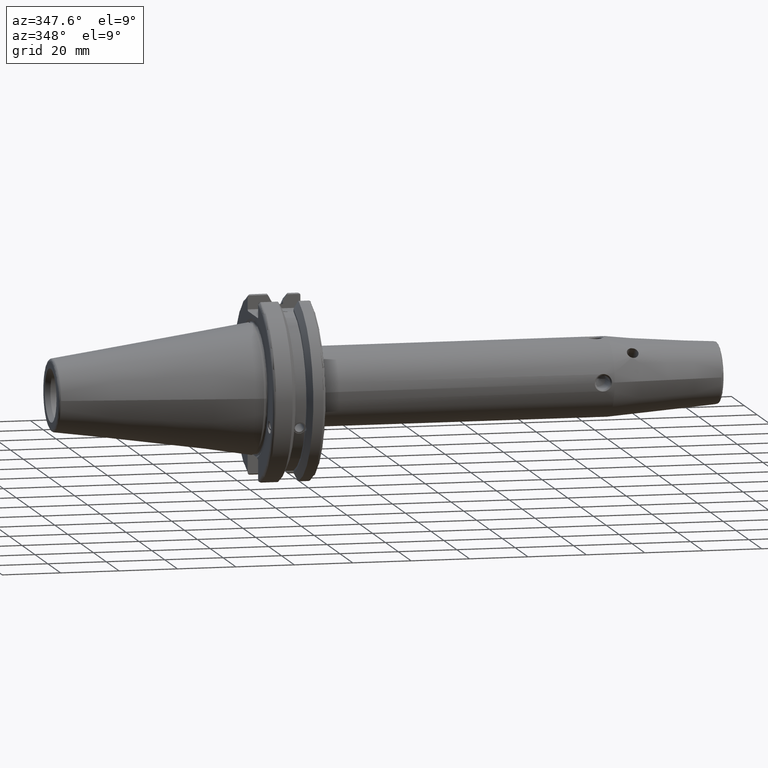
[diagram: clean part render]
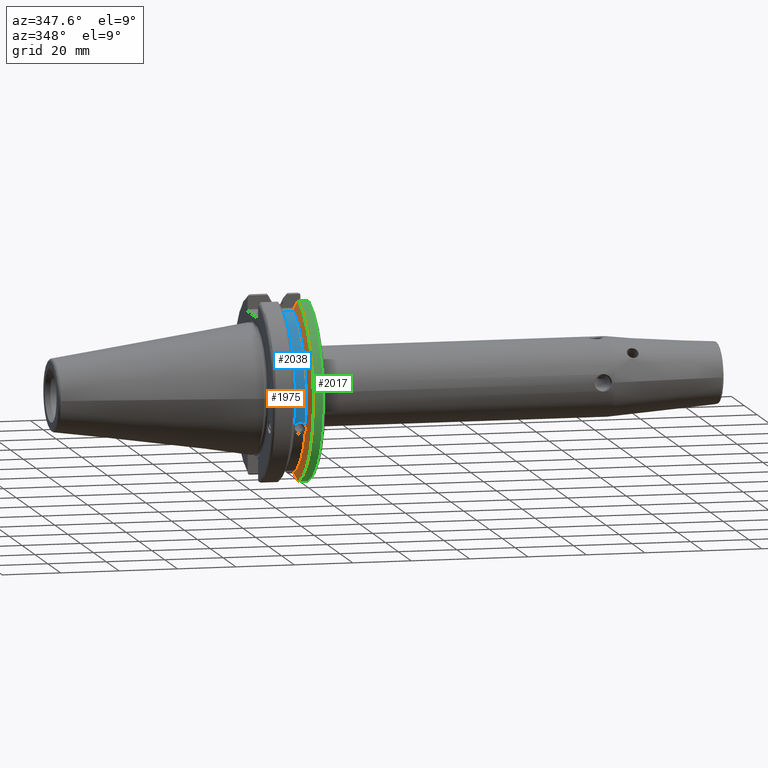
[diagram: same view with three faces highlighted in distinct colors, each labeled with its STEP entity id]
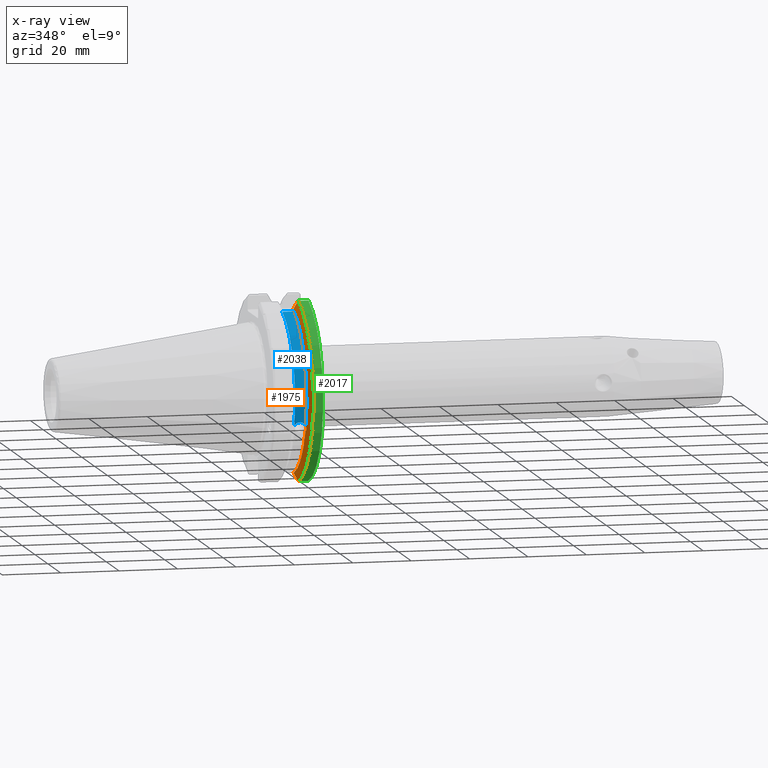
[diagram: x-ray of the same camera — body ghosted, the three highlighted faces saturated]
A machine part, auxiliary view with three faces highlighted in distinct colors.
The next image is the same camera in x-ray (body ghosted, the three faces saturated) — at least one of them is partly hidden behind the body in this view.
Their STEP definitions:

[orange] entity #1975 — the highlighted conical surface has half-angle 60 deg.
#14=(
BOUNDED_CURVE()
B_SPLINE_CURVE(2,(#4179,#4180,#4181),.UNSPECIFIED.,.F.,.F.)
B_SPLINE_CURVE_WITH_KNOTS((3,3),(0.,0.276549142796805),.UNSPECIFIED.)
CURVE()
GEOMETRIC_REPRESENTATION_ITEM()
RATIONAL_B_SPLINE_CURVE((1.,1.00095203904186,1.00031614445102))
REPRESENTATION_ITEM('')
);
#15=(
BOUNDED_CURVE()
B_SPLINE_CURVE(2,(#4183,#4184,#4185),.UNSPECIFIED.,.F.,.F.)
B_SPLINE_CURVE_WITH_KNOTS((3,3),(0.,0.0639048713676002),.UNSPECIFIED.)
CURVE()
GEOMETRIC_REPRESENTATION_ITEM()
RATIONAL_B_SPLINE_CURVE((1.,1.0002844421828,1.00047644010568))
REPRESENTATION_ITEM('')
);
#16=(
BOUNDED_CURVE()
B_SPLINE_CURVE(2,(#4189,#4190,#4191),.UNSPECIFIED.,.F.,.F.)
B_SPLINE_CURVE_WITH_KNOTS((3,3),(0.329353533631192,0.393258405001023),
 .UNSPECIFIED.)
CURVE()
GEOMETRIC_REPRESENTATION_ITEM()
RATIONAL_B_SPLINE_CURVE((1.00047644010581,1.00028444218288,1.))
REPRESENTATION_ITEM('')
);
#17=(
BOUNDED_CURVE()
B_SPLINE_CURVE(2,(#4193,#4194,#4195),.UNSPECIFIED.,.F.,.F.)
B_SPLINE_CURVE_WITH_KNOTS((3,3),(0.0550586467390284,0.331607789535849),
 .UNSPECIFIED.)
CURVE()
GEOMETRIC_REPRESENTATION_ITEM()
RATIONAL_B_SPLINE_CURVE((1.00031614445116,1.00095203904229,1.))
REPRESENTATION_ITEM('')
);
#140=CONICAL_SURFACE('',#2156,30.3546886482472,1.0471975511966);
#196=FACE_OUTER_BOUND('',#324,.T.);
#324=EDGE_LOOP('',(#1532,#1533,#1534,#1535,#1536,#1537,#1538,#1539,#1540));
#672=CIRCLE('',#2157,28.9593772964944);
#673=CIRCLE('',#2158,31.75);
#674=CIRCLE('',#2159,28.9593772964944);
#754=B_SPLINE_CURVE_WITH_KNOTS('',3,(#4086,#4087,#4088,#4089,#4090,#4091,
#4092,#4093),.UNSPECIFIED.,.F.,.F.,(4,2,2,4),(0.451995700189026,0.46454782854766,
0.504528771685166,0.544509714822671),.UNSPECIFIED.);
#758=B_SPLINE_CURVE_WITH_KNOTS('',3,(#4148,#4149,#4150,#4151,#4152,#4153,
#4154,#4155),.UNSPECIFIED.,.F.,.F.,(4,2,2,4),(0.544509714822671,0.584490657960176,
0.624471601097681,0.637023729456314),.UNSPECIFIED.);
#865=VERTEX_POINT('',#4083);
#866=VERTEX_POINT('',#4085);
#873=VERTEX_POINT('',#4146);
#879=VERTEX_POINT('',#4176);
#880=VERTEX_POINT('',#4178);
#881=VERTEX_POINT('',#4182);
#882=VERTEX_POINT('',#4186);
#883=VERTEX_POINT('',#4188);
#884=VERTEX_POINT('',#4192);
#1101=EDGE_CURVE('',#866,#865,#754,.T.);
#1109=EDGE_CURVE('',#865,#873,#758,.T.);
#1118=EDGE_CURVE('',#873,#879,#672,.T.);
#1119=EDGE_CURVE('',#879,#880,#14,.T.);
#1120=EDGE_CURVE('',#881,#880,#15,.T.);
#1121=EDGE_CURVE('',#882,#881,#673,.T.);
#1122=EDGE_CURVE('',#883,#882,#16,.T.);
#1123=EDGE_CURVE('',#883,#884,#17,.T.);
#1124=EDGE_CURVE('',#884,#866,#674,.T.);
#1532=ORIENTED_EDGE('',*,*,#1101,.T.);
#1533=ORIENTED_EDGE('',*,*,#1109,.T.);
#1534=ORIENTED_EDGE('',*,*,#1118,.T.);
#1535=ORIENTED_EDGE('',*,*,#1119,.T.);
#1536=ORIENTED_EDGE('',*,*,#1120,.F.);
#1537=ORIENTED_EDGE('',*,*,#1121,.F.);
#1538=ORIENTED_EDGE('',*,*,#1122,.F.);
#1539=ORIENTED_EDGE('',*,*,#1123,.T.);
#1540=ORIENTED_EDGE('',*,*,#1124,.T.);
#1975=ADVANCED_FACE('',(#196),#140,.T.);
#2156=AXIS2_PLACEMENT_3D('',#4175,#2517,#2518);
#2157=AXIS2_PLACEMENT_3D('',#4177,#2519,#2520);
#2158=AXIS2_PLACEMENT_3D('',#4187,#2521,#2522);
#2159=AXIS2_PLACEMENT_3D('',#4196,#2523,#2524);
#2517=DIRECTION('center_axis',(1.,0.,0.));
#2518=DIRECTION('ref_axis',(0.,-1.,-1.22464679914735E-16));
#2519=DIRECTION('center_axis',(1.,0.,0.));
#2520=DIRECTION('ref_axis',(0.,0.,-1.));
#2521=DIRECTION('center_axis',(1.,0.,0.));
#2522=DIRECTION('ref_axis',(0.,0.,-1.));
#2523=DIRECTION('center_axis',(1.,0.,0.));
#2524=DIRECTION('ref_axis',(0.,0.,-1.));
#4083=CARTESIAN_POINT('',(13.276,-27.51401829017,-10.0142836826777));
#4085=CARTESIAN_POINT('',(13.091,-27.4956274489925,-9.09043478536249));
#4086=CARTESIAN_POINT('Ctrl Pts',(13.091,-27.4956274489925,-9.09043478536248));
#4087=CARTESIAN_POINT('Ctrl Pts',(13.1051204071996,-27.5087667900418,-9.12860597076219));
#4088=CARTESIAN_POINT('Ctrl Pts',(13.1185929817857,-27.5206055003512,-9.16696618806878));
#4089=CARTESIAN_POINT('Ctrl Pts',(13.171981441159,-27.5642934663232,-9.32791534028655));
#4090=CARTESIAN_POINT('Ctrl Pts',(13.2101197084175,-27.5867382255984,-9.46717946402648));
#4091=CARTESIAN_POINT('Ctrl Pts',(13.2623106446058,-27.5847569104122,-9.74771639360671));
#4092=CARTESIAN_POINT('Ctrl Pts',(13.276,-27.559599249844,-9.8890510252165));
#4093=CARTESIAN_POINT('Ctrl Pts',(13.276,-27.51401829017,-10.0142836826777));
#4146=CARTESIAN_POINT('',(13.091,-26.9060914640649,-10.710171591907));
#4148=CARTESIAN_POINT('Ctrl Pts',(13.276,-27.51401829017,-10.0142836826777));
#4149=CARTESIAN_POINT('Ctrl Pts',(13.276,-27.4684373304961,-10.139516340139));
#4150=CARTESIAN_POINT('Ctrl Pts',(13.2623106446058,-27.3968610665578,-10.2639559818059));
#4151=CARTESIAN_POINT('Ctrl Pts',(13.2101197084175,-27.2180531796526,-10.4801333026531));
#4152=CARTESIAN_POINT('Ctrl Pts',(13.171981441159,-27.1113422433189,-10.5723885976054));
#4153=CARTESIAN_POINT('Ctrl Pts',(13.1185929817857,-26.9744191989197,-10.6676007180673));
#4154=CARTESIAN_POINT('Ctrl Pts',(13.1051204071996,-26.9406927482839,-10.6893765730703));
#4155=CARTESIAN_POINT('Ctrl Pts',(13.091,-26.9060914640649,-10.7101715919071));
#4175=CARTESIAN_POINT('Origin',(13.8965833845378,0.,0.));
#4176=CARTESIAN_POINT('',(13.091,-8.19,-27.7771386827498));
#4177=CARTESIAN_POINT('Origin',(13.091,0.,0.));
#4178=CARTESIAN_POINT('',(14.4234146964874,-8.19,-30.1755016258903));
#4179=CARTESIAN_POINT('Ctrl Pts',(13.091,-8.19,-27.7771386827498));
#4180=CARTESIAN_POINT('Ctrl Pts',(13.7296364384735,-8.19,-28.9303689539659));
#4181=CARTESIAN_POINT('Ctrl Pts',(14.4234146964874,-8.19,-30.1755016258903));
#4182=CARTESIAN_POINT('',(14.7021667690756,-8.67204822802685,-30.5427254764662));
#4183=CARTESIAN_POINT('Ctrl Pts',(14.7021667690756,-8.67204822802686,-30.5427254764662));
#4184=CARTESIAN_POINT('Ctrl Pts',(14.5611085187837,-8.42917748262647,-30.357706789263));
#4185=CARTESIAN_POINT('Ctrl Pts',(14.4234146964874,-8.19,-30.1755016258903));
#4186=CARTESIAN_POINT('',(14.7021667690756,-8.67204822802685,30.5427254764662));
#4187=CARTESIAN_POINT('Origin',(14.7021667690756,0.,0.));
#4188=CARTESIAN_POINT('',(14.4234146964874,-8.19,30.1755016258903));
#4189=CARTESIAN_POINT('Ctrl Pts',(14.4234146964874,-8.19,30.1755016258903));
#4190=CARTESIAN_POINT('Ctrl Pts',(14.5611085187884,-8.42917748263466,30.3577067892692));
#4191=CARTESIAN_POINT('Ctrl Pts',(14.7021667690756,-8.67204822802685,30.5427254764662));
#4192=CARTESIAN_POINT('',(13.091,-8.19,27.7771386827498));
#4193=CARTESIAN_POINT('Ctrl Pts',(14.4234146964874,-8.19,30.1755016258903));
#4194=CARTESIAN_POINT('Ctrl Pts',(13.7296364384736,-8.19,28.9303689539661));
#4195=CARTESIAN_POINT('Ctrl Pts',(13.091,-8.19,27.7771386827498));
#4196=CARTESIAN_POINT('Origin',(13.091,0.,0.));

[blue] entity #2038 — the highlighted cylindrical surface (partial cylindrical patch) has radius 28.15 mm, axis along (1, 0, 0).
#259=FACE_OUTER_BOUND('',#394,.T.);
#394=EDGE_LOOP('',(#1877,#1878,#1879,#1880));
#476=LINE('',#4499,#593);
#593=VECTOR('',#2654,10.);
#720=CIRCLE('',#2276,28.15);
#721=CIRCLE('',#2278,28.15);
#755=B_SPLINE_CURVE_WITH_KNOTS('',3,(#4097,#4098,#4099,#4100,#4101,#4102,
#4103,#4104,#4105,#4106,#4107,#4108,#4109,#4110),.UNSPECIFIED.,.F.,.F.,
(4,2,2,2,2,2,4),(0.401639126382403,0.474814416953736,0.553950208498303,
0.63308600004287,0.712221791587437,0.791357583132004,0.864532873703336),
 .UNSPECIFIED.);
#867=VERTEX_POINT('',#4094);
#868=VERTEX_POINT('',#4096);
#940=VERTEX_POINT('',#4496);
#941=VERTEX_POINT('',#4498);
#1103=EDGE_CURVE('',#868,#867,#755,.T.);
#1203=EDGE_CURVE('',#941,#940,#476,.T.);
#1281=EDGE_CURVE('',#940,#868,#720,.T.);
#1282=EDGE_CURVE('',#941,#867,#721,.T.);
#1877=ORIENTED_EDGE('',*,*,#1103,.T.);
#1878=ORIENTED_EDGE('',*,*,#1282,.F.);
#1879=ORIENTED_EDGE('',*,*,#1203,.T.);
#1880=ORIENTED_EDGE('',*,*,#1281,.T.);
#1928=CYLINDRICAL_SURFACE('',#2277,28.15);
#2038=ADVANCED_FACE('',(#259),#1928,.T.);
#2276=AXIS2_PLACEMENT_3D('',#4707,#2823,#2824);
#2277=AXIS2_PLACEMENT_3D('',#4708,#2825,#2826);
#2278=AXIS2_PLACEMENT_3D('',#4709,#2827,#2828);
#2654=DIRECTION('',(-1.,0.,0.));
#2823=DIRECTION('center_axis',(1.,0.,0.));
#2824=DIRECTION('ref_axis',(0.,0.,-1.));
#2825=DIRECTION('center_axis',(1.,0.,0.));
#2826=DIRECTION('ref_axis',(0.,-0.887654187951484,0.46051063246378));
#2827=DIRECTION('center_axis',(1.,0.,0.));
#2828=DIRECTION('ref_axis',(0.,0.,-1.));
#4094=CARTESIAN_POINT('',(13.091,-26.734714844398,-8.81348524641212));
#4096=CARTESIAN_POINT('',(9.261,-26.734714844398,-8.81348524641212));
#4097=CARTESIAN_POINT('Ctrl Pts',(9.261,-26.734714844398,-8.81348524641212));
#4098=CARTESIAN_POINT('Ctrl Pts',(9.36723057097183,-26.8086519721597,-8.58920529678291));
#4099=CARTESIAN_POINT('Ctrl Pts',(9.51872013770509,-26.8729987454904,-8.38416529997369));
#4100=CARTESIAN_POINT('Ctrl Pts',(9.87747062657411,-26.9778908791383,-8.04056861831091));
#4101=CARTESIAN_POINT('Ctrl Pts',(10.1135450112988,-27.0233016799732,-7.88512567185902));
#4102=CARTESIAN_POINT('Ctrl Pts',(10.6309125426388,-27.0826966800569,-7.6786444840004));
#4103=CARTESIAN_POINT('Ctrl Pts',(10.9122140281848,-27.0968804077294,-7.62768458768513));
#4104=CARTESIAN_POINT('Ctrl Pts',(11.4397859718152,-27.0968804077294,-7.62768458768513));
#4105=CARTESIAN_POINT('Ctrl Pts',(11.7210874573612,-27.0826966800569,-7.6786444840004));
#4106=CARTESIAN_POINT('Ctrl Pts',(12.2384549887012,-27.0233016799732,-7.88512567185903));
#4107=CARTESIAN_POINT('Ctrl Pts',(12.4745293734259,-26.9778908791383,-8.04056861831091));
#4108=CARTESIAN_POINT('Ctrl Pts',(12.8332798622949,-26.8729987454904,-8.3841652999737));
#4109=CARTESIAN_POINT('Ctrl Pts',(12.9847694290282,-26.8086519721597,-8.58920529678291));
#4110=CARTESIAN_POINT('Ctrl Pts',(13.091,-26.734714844398,-8.81348524641212));
#4496=CARTESIAN_POINT('',(9.261,-8.19,26.932255754021));
#4498=CARTESIAN_POINT('',(13.091,-8.19,26.932255754021));
#4499=CARTESIAN_POINT('',(11.176,-8.19,26.932255754021));
#4707=CARTESIAN_POINT('Origin',(9.261,0.,0.));
#4708=CARTESIAN_POINT('Origin',(11.176,0.,0.));
#4709=CARTESIAN_POINT('Origin',(13.091,0.,0.));

[green] entity #2017 — the highlighted cylindrical surface (partial cylindrical patch) has radius 31.75 mm, axis along (1, 0, 0).
#238=FACE_OUTER_BOUND('',#371,.T.);
#371=EDGE_LOOP('',(#1783,#1784,#1785,#1786));
#506=LINE('',#4651,#623);
#507=LINE('',#4653,#624);
#623=VECTOR('',#2744,10.);
#624=VECTOR('',#2747,10.);
#673=CIRCLE('',#2158,31.75);
#693=CIRCLE('',#2209,31.75);
#881=VERTEX_POINT('',#4182);
#882=VERTEX_POINT('',#4186);
#933=VERTEX_POINT('',#4459);
#934=VERTEX_POINT('',#4468);
#1121=EDGE_CURVE('',#882,#881,#673,.T.);
#1195=EDGE_CURVE('',#933,#934,#693,.T.);
#1257=EDGE_CURVE('',#934,#881,#506,.T.);
#1258=EDGE_CURVE('',#882,#933,#507,.T.);
#1783=ORIENTED_EDGE('',*,*,#1195,.F.);
#1784=ORIENTED_EDGE('',*,*,#1258,.F.);
#1785=ORIENTED_EDGE('',*,*,#1121,.T.);
#1786=ORIENTED_EDGE('',*,*,#1257,.F.);
#1922=CYLINDRICAL_SURFACE('',#2241,31.75);
#2017=ADVANCED_FACE('',(#238),#1922,.T.);
#2158=AXIS2_PLACEMENT_3D('',#4187,#2521,#2522);
#2209=AXIS2_PLACEMENT_3D('',#4469,#2646,#2647);
#2241=AXIS2_PLACEMENT_3D('',#4652,#2745,#2746);
#2521=DIRECTION('center_axis',(1.,0.,0.));
#2522=DIRECTION('ref_axis',(0.,0.,-1.));
#2646=DIRECTION('center_axis',(1.,0.,0.));
#2647=DIRECTION('ref_axis',(0.,-1.,1.60812264967664E-16));
#2744=DIRECTION('',(-1.,0.,0.));
#2745=DIRECTION('center_axis',(1.,0.,0.));
#2746=DIRECTION('ref_axis',(0.,-1.,1.22464679914735E-16));
#2747=DIRECTION('',(1.,0.,0.));
#4182=CARTESIAN_POINT('',(14.7021667690756,-8.67204822802685,-30.5427254764662));
#4186=CARTESIAN_POINT('',(14.7021667690756,-8.67204822802685,30.5427254764662));
#4187=CARTESIAN_POINT('Origin',(14.7021667690756,0.,0.));
#4459=CARTESIAN_POINT('',(18.05,-8.67204822802685,30.5427254764662));
#4468=CARTESIAN_POINT('',(18.05,-8.67204822802685,-30.5427254764662));
#4469=CARTESIAN_POINT('Origin',(18.05,0.,0.));
#4651=CARTESIAN_POINT('',(16.8760833845378,-8.67204822802685,-30.5427254764662));
#4652=CARTESIAN_POINT('Origin',(16.8760833845378,0.,0.));
#4653=CARTESIAN_POINT('',(16.8760833845378,-8.67204822802685,30.5427254764662));